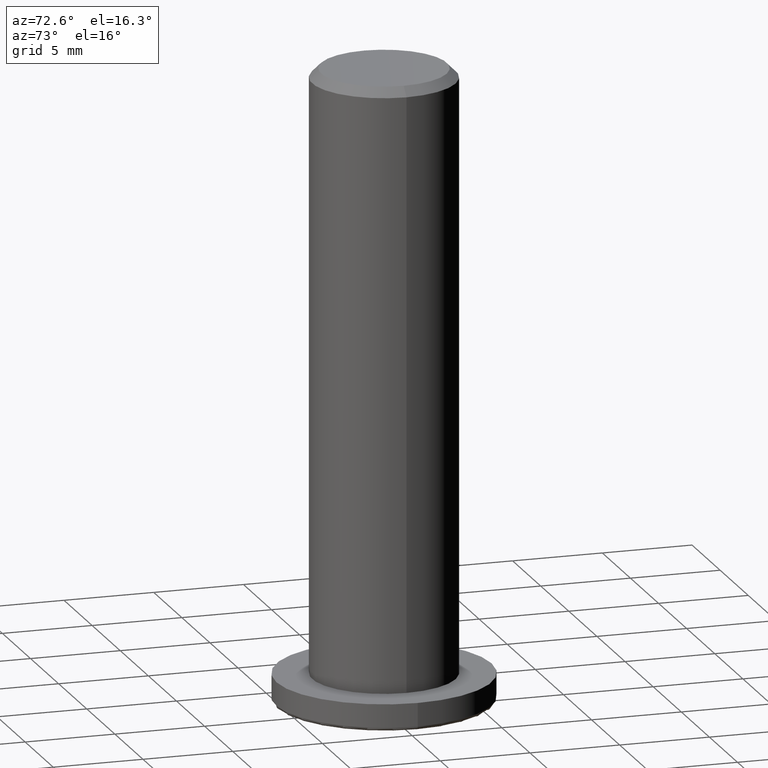
[diagram: clean part render]
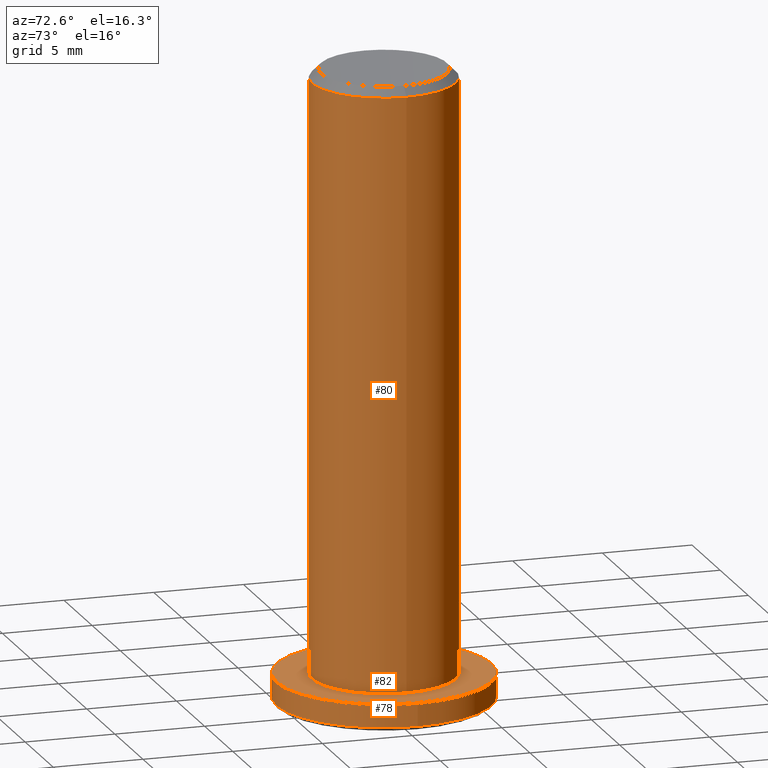
[diagram: same view with one multi-face feature highlighted, each face labeled with its STEP entity id]
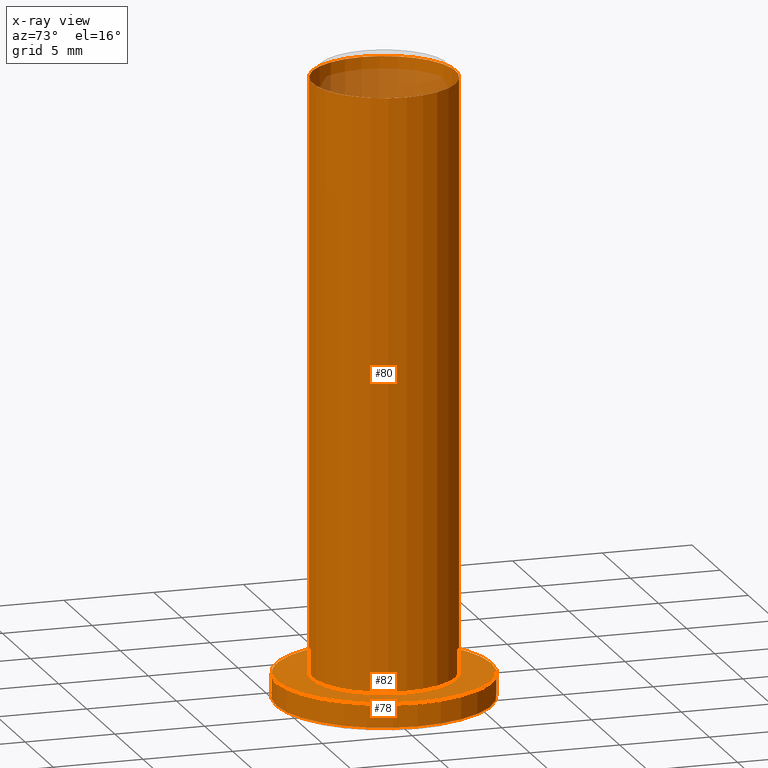
[diagram: x-ray of the same camera — body ghosted, the whole feature saturated]
A machine part, auxiliary view. The highlighted faces form ONE feature: a stepped (counterbored) hole: 2 coaxial cylindrical walls of radii 4 -> 6 mm joined by 1 annular planar shoulder face(s). The faces share edges in the B-rep.
The next image is the same camera in x-ray: the body ghosted and the whole hole feature saturated, so the bore chain is visible through the body.
Their STEP definitions:
[1] entity #78 (Cylinder):
#16=CYLINDRICAL_SURFACE('',#89,6.);
#22=FACE_BOUND('',#37,.T.);
#28=FACE_OUTER_BOUND('',#36,.T.);
#36=EDGE_LOOP('',(#66));
#37=EDGE_LOOP('',(#67));
#45=CIRCLE('',#86,6.);
#47=CIRCLE('',#90,6.);
#51=VERTEX_POINT('',#128);
#53=VERTEX_POINT('',#134);
#57=EDGE_CURVE('',#51,#51,#45,.T.);
#59=EDGE_CURVE('',#53,#53,#47,.T.);
#66=ORIENTED_EDGE('',*,*,#59,.F.);
#67=ORIENTED_EDGE('',*,*,#57,.F.);
#78=ADVANCED_FACE('',(#28,#22),#16,.T.);
#86=AXIS2_PLACEMENT_3D('',#129,#102,#103);
#89=AXIS2_PLACEMENT_3D('',#133,#108,#109);
#90=AXIS2_PLACEMENT_3D('',#135,#110,#111);
#102=DIRECTION('center_axis',(0.,0.,-1.));
#103=DIRECTION('ref_axis',(-1.,0.,0.));
#108=DIRECTION('center_axis',(0.,0.,1.));
#109=DIRECTION('ref_axis',(-1.,0.,0.));
#110=DIRECTION('center_axis',(0.,0.,1.));
#111=DIRECTION('ref_axis',(-1.,0.,0.));
#128=CARTESIAN_POINT('',(6.,-7.34788079488412E-16,-0.55));
#129=CARTESIAN_POINT('Origin',(0.,0.,-0.55));
#133=CARTESIAN_POINT('Origin',(0.,0.,0.));
#134=CARTESIAN_POINT('',(6.,7.34788079488412E-16,0.75));
#135=CARTESIAN_POINT('Origin',(0.,0.,0.75));
[2] entity #80 (Cylinder):
#17=CYLINDRICAL_SURFACE('',#94,4.);
#24=FACE_BOUND('',#41,.T.);
#30=FACE_OUTER_BOUND('',#40,.T.);
#40=EDGE_LOOP('',(#70));
#41=EDGE_LOOP('',(#71));
#48=CIRCLE('',#92,4.);
#50=CIRCLE('',#95,4.);
#54=VERTEX_POINT('',#137);
#56=VERTEX_POINT('',#142);
#60=EDGE_CURVE('',#54,#54,#48,.T.);
#62=EDGE_CURVE('',#56,#56,#50,.T.);
#70=ORIENTED_EDGE('',*,*,#62,.F.);
#71=ORIENTED_EDGE('',*,*,#60,.F.);
#80=ADVANCED_FACE('',(#30,#24),#17,.T.);
#92=AXIS2_PLACEMENT_3D('',#138,#114,#115);
#94=AXIS2_PLACEMENT_3D('',#141,#118,#119);
#95=AXIS2_PLACEMENT_3D('',#143,#120,#121);
#114=DIRECTION('center_axis',(0.,0.,1.));
#115=DIRECTION('ref_axis',(-1.,0.,0.));
#118=DIRECTION('center_axis',(0.,0.,1.));
#119=DIRECTION('ref_axis',(-1.,0.,0.));
#120=DIRECTION('center_axis',(0.,0.,-1.));
#121=DIRECTION('ref_axis',(-1.,0.,0.));
#137=CARTESIAN_POINT('',(4.,4.89858719658941E-16,33.75));
#138=CARTESIAN_POINT('Origin',(0.,0.,33.75));
#141=CARTESIAN_POINT('Origin',(0.,0.,0.75));
#142=CARTESIAN_POINT('',(4.,4.89858719658941E-16,0.75));
#143=CARTESIAN_POINT('Origin',(0.,0.,0.75));
[3] entity #82 (Plane):
#20=PLANE('',#97);
#25=FACE_BOUND('',#44,.T.);
#32=FACE_OUTER_BOUND('',#43,.T.);
#43=EDGE_LOOP('',(#73));
#44=EDGE_LOOP('',(#74));
#47=CIRCLE('',#90,6.);
#50=CIRCLE('',#95,4.);
#53=VERTEX_POINT('',#134);
#56=VERTEX_POINT('',#142);
#59=EDGE_CURVE('',#53,#53,#47,.T.);
#62=EDGE_CURVE('',#56,#56,#50,.T.);
#73=ORIENTED_EDGE('',*,*,#59,.T.);
#74=ORIENTED_EDGE('',*,*,#62,.T.);
#82=ADVANCED_FACE('',(#32,#25),#20,.T.);
#90=AXIS2_PLACEMENT_3D('',#135,#110,#111);
#95=AXIS2_PLACEMENT_3D('',#143,#120,#121);
#97=AXIS2_PLACEMENT_3D('',#145,#124,#125);
#110=DIRECTION('center_axis',(0.,0.,1.));
#111=DIRECTION('ref_axis',(-1.,0.,0.));
#120=DIRECTION('center_axis',(0.,0.,-1.));
#121=DIRECTION('ref_axis',(-1.,0.,0.));
#124=DIRECTION('center_axis',(0.,0.,1.));
#125=DIRECTION('ref_axis',(1.,0.,0.));
#134=CARTESIAN_POINT('',(6.,7.34788079488412E-16,0.75));
#135=CARTESIAN_POINT('Origin',(0.,0.,0.75));
#142=CARTESIAN_POINT('',(4.,4.89858719658941E-16,0.75));
#143=CARTESIAN_POINT('Origin',(0.,0.,0.75));
#145=CARTESIAN_POINT('Origin',(-3.69627624575467E-16,-1.54197642309049E-16,
0.75));